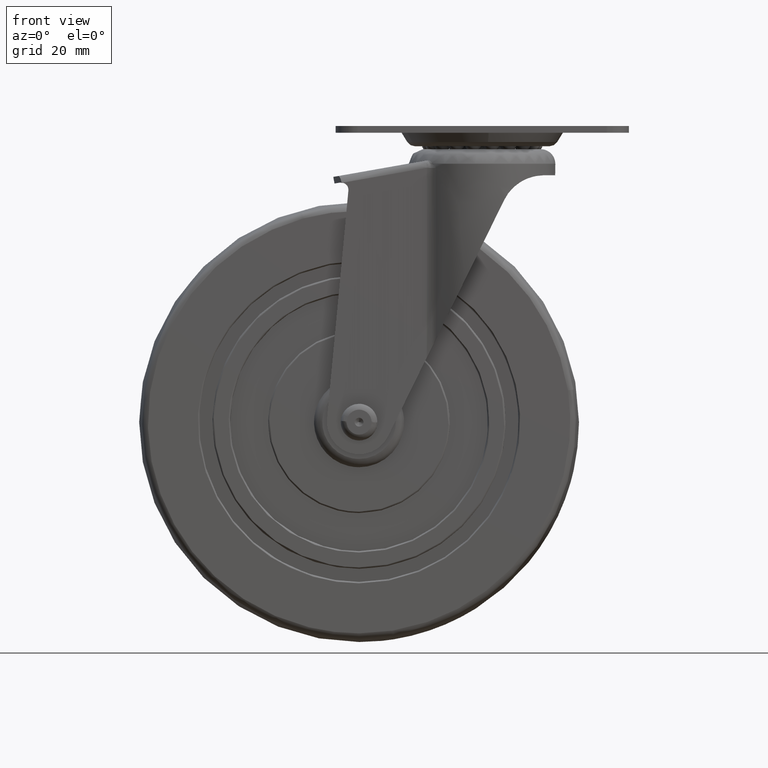
[diagram: clean part render]
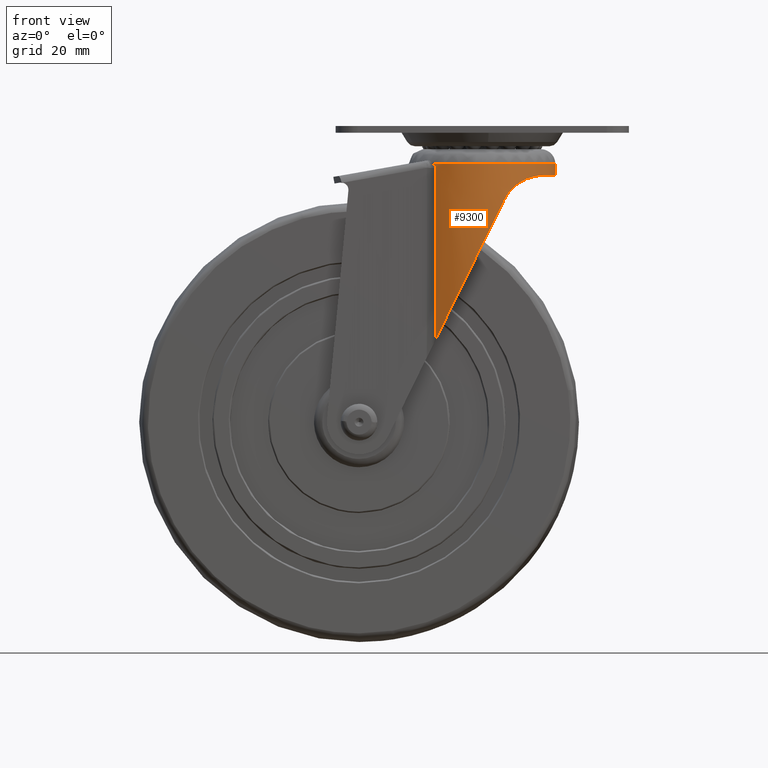
[diagram: same view with one face highlighted and labeled with its STEP entity id]
A machine part, front view. The second image highlights one B-rep face of the part: STEP entity #9300.
In plain terms, the highlighted face is a freeform B-spline surface patch.
Its self-contained STEP definition (entity closure, byte-faithful):
#6570=CARTESIAN_POINT('',(55.379991379837477,21.118139848847349,88.099995000010949));
#6571=VERTEX_POINT('',#6570);
#6585=CARTESIAN_POINT('',(25.074347055175949,18.398974764681100,88.099995000000092));
#6586=VERTEX_POINT('',#6585);
#6587=CARTESIAN_POINT('',(25.074347055175998,18.398974764681061,88.099995000000092));
#6588=CARTESIAN_POINT('',(39.184506428146975,31.379244785025445,88.099995000000106));
#6589=CARTESIAN_POINT('',(55.379991379837477,21.118139848847349,88.099995000010949));
#6597=(BOUNDED_CURVE()B_SPLINE_CURVE(2,(#6587,#6588,#6589),.UNSPECIFIED.,.F.,.U.)B_SPLINE_CURVE_WITH_KNOTS((3,3),(0.0,0.279399680575787),.UNSPECIFIED.)CURVE()GEOMETRIC_REPRESENTATION_ITEM()RATIONAL_B_SPLINE_CURVE((1.0,0.762401471135830,0.923112660691216))REPRESENTATION_ITEM(''));
#6598=EDGE_CURVE('',#6586,#6571,#6597,.T.);
#6665=CARTESIAN_POINT('',(25.022755751862601,-18.351380812873149,88.099995000000092));
#6666=VERTEX_POINT('',#6665);
#6682=CARTESIAN_POINT('',(66.928972506515350,-1.883170138198314,88.099995000010921));
#6683=VERTEX_POINT('',#6682);
#6684=CARTESIAN_POINT('',(66.928972506515350,-1.883170138198314,88.099995000010921));
#6685=CARTESIAN_POINT('',(66.243719502031297,-10.954391565452626,88.099995000000092));
#6686=CARTESIAN_POINT('',(59.888922937896787,-17.463860859557670,88.099995000000092));
#6687=CARTESIAN_POINT('',(42.887840046651576,-34.878742033203501,88.099995000000092));
#6688=CARTESIAN_POINT('',(25.022755751862650,-18.351380812873099,88.099995000000092));
#6696=(BOUNDED_CURVE()B_SPLINE_CURVE(2,(#6684,#6685,#6686,#6687,#6688),.UNSPECIFIED.,.F.,.U.)B_SPLINE_CURVE_WITH_KNOTS((3,2,3),(0.515180778970054,0.666666666666667,1.0),.UNSPECIFIED.)CURVE()GEOMETRIC_REPRESENTATION_ITEM()RATIONAL_B_SPLINE_CURVE((0.859444296361107,0.871178005693406,1.0,0.716536864114606,1.0))REPRESENTATION_ITEM(''));
#6697=EDGE_CURVE('',#6683,#6666,#6696,.T.);
#6737=CARTESIAN_POINT('',(55.379991379837477,21.118139848847349,88.099995000010949));
#6738=CARTESIAN_POINT('',(57.878044136044409,19.535428275590490,88.099995000000092));
#6739=CARTESIAN_POINT('',(59.937884965142374,17.413566061474022,88.099995000000092));
#6740=CARTESIAN_POINT('',(67.776691222540677,9.338734954918538,88.099995000000106));
#6741=CARTESIAN_POINT('',(66.928972506515350,-1.883170138198314,88.099995000010921));
#6749=(BOUNDED_CURVE()B_SPLINE_CURVE(2,(#6737,#6738,#6739,#6740,#6741),.UNSPECIFIED.,.F.,.U.)B_SPLINE_CURVE_WITH_KNOTS((3,2,3),(0.279399680575787,0.333333333333333,0.515180778970055),.UNSPECIFIED.)CURVE()GEOMETRIC_REPRESENTATION_ITEM()RATIONAL_B_SPLINE_CURVE((0.923112660691216,0.954135392978776,1.0,0.845358858421199,0.859444296361107))REPRESENTATION_ITEM(''));
#6750=EDGE_CURVE('',#6571,#6683,#6749,.T.);
#7347=CARTESIAN_POINT('',(26.276602395577498,19.436428884268899,28.530350425748900));
#7348=VERTEX_POINT('',#7347);
#7364=CARTESIAN_POINT('',(26.276602395577552,19.436428884268949,86.726631020429011));
#7365=VERTEX_POINT('',#7364);
#7379=CARTESIAN_POINT('',(26.276602395577498,19.436428884268899,28.530350425748900));
#7380=CARTESIAN_POINT('',(26.276602395577559,19.436428884268910,47.929110623975014));
#7381=CARTESIAN_POINT('',(26.276602395577559,19.436428884268910,67.327870822201007));
#7382=CARTESIAN_POINT('',(26.276602395577552,19.436428884268949,86.726631020429011));
#7383=QUASI_UNIFORM_CURVE('',3,(#7379,#7380,#7381,#7382),.UNSPECIFIED.,.F.,.U.);
#7384=EDGE_CURVE('',#7348,#7365,#7383,.T.);
#7462=CARTESIAN_POINT('',(26.276602395577662,19.436428884268992,86.726631020428997));
#7463=CARTESIAN_POINT('',(26.275293949396509,19.435370765942970,86.763454329114538));
#7464=CARTESIAN_POINT('',(26.272655665737119,19.433237230510311,86.837702956982611));
#7465=CARTESIAN_POINT('',(26.251606721170919,19.416191888497469,86.948083596667331));
#7466=CARTESIAN_POINT('',(26.218195739146939,19.389056789983812,87.057382022851144));
#7467=CARTESIAN_POINT('',(26.171309273694941,19.350816733266040,87.165566470412983));
#7468=CARTESIAN_POINT('',(26.085889557313500,19.280757305022838,87.318559214100290));
#7469=CARTESIAN_POINT('',(25.944244228952520,19.163335080716429,87.500828243864589));
#7470=CARTESIAN_POINT('',(25.760833079945328,19.008156647393250,87.660780158741701));
#7471=CARTESIAN_POINT('',(25.546765446049100,18.823310949533830,87.781768830590195));
#7472=CARTESIAN_POINT('',(25.376030660700970,18.672551408194920,87.866040528778541));
#7473=CARTESIAN_POINT('',(25.232421321539530,18.543260854406839,87.941400023406601));
#7474=CARTESIAN_POINT('',(25.159649831264652,18.477150806835510,87.992914498669123));
#7475=CARTESIAN_POINT('',(25.105118887068450,18.427264000515379,88.041421691400885));
#7476=CARTESIAN_POINT('',(25.083575794432431,18.407458951849090,88.082428356768062));
#7477=CARTESIAN_POINT('',(25.074347055175991,18.398974764681050,88.099994999999993));
#7478=B_SPLINE_CURVE_WITH_KNOTS('',3,(#7462,#7463,#7464,#7465,#7466,#7467,#7468,#7469,#7470,#7471,#7472,#7473,#7474,#7475,#7476,#7477),.UNSPECIFIED.,.F.,.U.,(4,1,1,1,1,1,1,1,1,1,1,1,1,4),(0.0,0.049636943291053,0.100085382397273,0.152461301079727,0.207764118186397,0.266844901971759,0.406644860115500,0.554602683833238,0.653247805519854,0.820950986558730,0.882696968847899,0.932503898434406,0.971085677776204,1.0),.UNSPECIFIED.);
#7479=EDGE_CURVE('',#7365,#6586,#7478,.T.);
#7945=CARTESIAN_POINT('',(26.227839187859949,-19.396879731441249,86.717361208894587));
#7946=VERTEX_POINT('',#7945);
#7960=CARTESIAN_POINT('',(25.022755751862690,-18.351380812873149,88.099994999999993));
#7961=CARTESIAN_POINT('',(25.029617422811071,-18.357725527349331,88.086110110257550));
#7962=CARTESIAN_POINT('',(25.045161914202431,-18.372098900875638,88.054655155524884));
#7963=CARTESIAN_POINT('',(25.083018944030918,-18.406980666848341,88.015309061963748));
#7964=CARTESIAN_POINT('',(25.132832382360672,-18.452658332369321,87.974541138354581));
#7965=CARTESIAN_POINT('',(25.196732563789379,-18.510896127685061,87.933450579540093));
#7966=CARTESIAN_POINT('',(25.330585223699060,-18.631946777485052,87.863447081569007));
#7967=CARTESIAN_POINT('',(25.496038519503799,-18.778857956554820,87.781689947295874));
#7968=CARTESIAN_POINT('',(25.710545662074800,-18.965086504988999,87.659447250816697));
#7969=CARTESIAN_POINT('',(25.894760980628089,-19.121773557097100,87.497570928071497));
#7970=CARTESIAN_POINT('',(26.052060997901378,-19.252850487132431,87.294150985354108));
#7971=CARTESIAN_POINT('',(26.156155765908188,-19.338454900875121,87.093028600906962));
#7972=CARTESIAN_POINT('',(26.216502917933770,-19.387671020432521,86.906847512660391));
#7973=CARTESIAN_POINT('',(26.224124752361231,-19.393862410638938,86.779448179110432));
#7974=CARTESIAN_POINT('',(26.227839187859949,-19.396879731441249,86.717361208894587));
#7975=B_SPLINE_CURVE_WITH_KNOTS('',3,(#7960,#7961,#7962,#7963,#7964,#7965,#7966,#7967,#7968,#7969,#7970,#7971,#7972,#7973,#7974),.UNSPECIFIED.,.F.,.U.,(4,1,1,1,1,1,1,1,1,1,1,1,4),(0.0,0.022338032621168,0.050604781020853,0.085795139517335,0.128421941640627,0.178771296470803,0.345564630990785,0.445072589217223,0.593082655438537,0.733115100632016,0.829452583203906,0.916885182271157,1.0),.UNSPECIFIED.);
#7976=EDGE_CURVE('',#6666,#7946,#7975,.T.);
#8022=CARTESIAN_POINT('',(26.227839187859900,-19.396879731441249,28.431119790046449));
#8023=VERTEX_POINT('',#8022);
#8034=CARTESIAN_POINT('',(26.227839187859949,-19.396879731441249,86.717361208894587));
#8035=CARTESIAN_POINT('',(26.227839187860049,-19.396879731441260,67.288614069278637));
#8036=CARTESIAN_POINT('',(26.227839187860049,-19.396879731441260,47.859866929662303));
#8037=CARTESIAN_POINT('',(26.227839187859900,-19.396879731441249,28.431119790046449));
#8038=QUASI_UNIFORM_CURVE('',3,(#8034,#8035,#8036,#8037),.UNSPECIFIED.,.F.,.U.);
#8039=EDGE_CURVE('',#7946,#8023,#8038,.T.);
#8621=CARTESIAN_POINT('',(49.518290358037802,-23.842720274587801,75.825997682429900));
#8622=VERTEX_POINT('',#8621);
#8628=CARTESIAN_POINT('',(49.518290358037802,-23.842720274587801,75.825997682429900));
#8629=CARTESIAN_POINT('',(36.675717525678728,-27.892350114888675,49.692018277467831));
#8630=CARTESIAN_POINT('',(26.227839187859900,-19.396879731441249,28.431119790046449));
#8638=(BOUNDED_CURVE()B_SPLINE_CURVE(2,(#8628,#8629,#8630),.UNSPECIFIED.,.F.,.U.)CURVE()GEOMETRIC_REPRESENTATION_ITEM()QUASI_UNIFORM_CURVE()RATIONAL_B_SPLINE_CURVE((1.0,0.880406584744681,1.0))REPRESENTATION_ITEM(''));
#8639=EDGE_CURVE('',#8622,#8023,#8638,.T.);
#8684=CARTESIAN_POINT('',(49.518290358037802,23.842720274587549,75.825997682429900));
#8685=VERTEX_POINT('',#8684);
#8686=CARTESIAN_POINT('',(26.276602395577541,19.436428884268899,28.530350425748921));
#8687=CARTESIAN_POINT('',(36.714317184623845,27.880178540491237,49.770566610818044));
#8688=CARTESIAN_POINT('',(49.518290358037802,23.842720274587549,75.825997682429900));
#8696=(BOUNDED_CURVE()B_SPLINE_CURVE(2,(#8686,#8687,#8688),.UNSPECIFIED.,.F.,.U.)CURVE()GEOMETRIC_REPRESENTATION_ITEM()QUASI_UNIFORM_CURVE()RATIONAL_B_SPLINE_CURVE((1.0,0.881001370450515,1.0))REPRESENTATION_ITEM(''));
#8697=EDGE_CURVE('',#7348,#8685,#8696,.T.);
#8761=CARTESIAN_POINT('',(62.967741033245787,-13.614471563844701,84.199996999999996));
#8762=VERTEX_POINT('',#8761);
#8763=CARTESIAN_POINT('',(62.967741033245787,-13.614471563844701,84.199996999999996));
#8764=CARTESIAN_POINT('',(62.833449936217768,-13.821289543254830,84.199924659103715));
#8765=CARTESIAN_POINT('',(62.696229234348500,-14.025915765834130,84.198044563318859));
#8766=CARTESIAN_POINT('',(62.147150194949042,-14.819186137712720,84.182687622250725));
#8767=CARTESIAN_POINT('',(61.713455158185177,-15.391414546377870,84.153923148869410));
#8768=CARTESIAN_POINT('',(61.026018651662767,-16.221570529866280,84.074559380295369));
#8769=CARTESIAN_POINT('',(60.790716915830743,-16.493585322391251,84.042048522327192));
#8770=CARTESIAN_POINT('',(60.428493189780127,-16.894459083511709,83.982677333733108));
#8771=CARTESIAN_POINT('',(60.306206322456831,-17.026891862189071,83.961117438171939));
#8772=CARTESIAN_POINT('',(60.058529963489171,-17.289353373093810,83.914177423237945));
#8773=CARTESIAN_POINT('',(59.933142970179027,-17.419367008410781,83.888790198768461));
#8774=CARTESIAN_POINT('',(59.302682764611802,-18.059159506900990,83.752545136936988));
#8775=CARTESIAN_POINT('',(58.783804431775970,-18.541603379351500,83.613256486077560));
#8776=CARTESIAN_POINT('',(57.722862334406337,-19.449390236437839,83.261370167299503));
#8777=CARTESIAN_POINT('',(57.180772784882677,-19.874729039663571,83.048836685314029));
#8778=CARTESIAN_POINT('',(56.492613855470047,-20.371370887963732,82.727575599752655));
#8779=CARTESIAN_POINT('',(56.354457161515263,-20.468946322511169,82.660533298962577));
#8780=CARTESIAN_POINT('',(56.077205350770917,-20.660602649509048,82.520574695715055));
#8781=CARTESIAN_POINT('',(55.938635612191007,-20.754314833993771,82.447914953424771));
#8782=CARTESIAN_POINT('',(55.525093253970418,-21.028100335753280,82.222675914572321));
#8783=CARTESIAN_POINT('',(55.251548383069263,-21.201337608367439,82.062469517954440));
#8784=CARTESIAN_POINT('',(54.439093562421981,-21.694941082070262,81.550695819180035));
#8785=CARTESIAN_POINT('',(53.908320512852903,-21.989236415130598,81.168061150288423));
#8786=CARTESIAN_POINT('',(53.135832936051777,-22.384744976136670,80.526657620292227));
#8787=CARTESIAN_POINT('',(52.882290843956063,-22.508915548380191,80.301595466476797));
#8788=CARTESIAN_POINT('',(52.508956164928897,-22.684370454447240,79.946218480960042));
#8789=CARTESIAN_POINT('',(52.385675491208602,-22.741054746099490,79.824793573013906));
#8790=CARTESIAN_POINT('',(52.141633738585362,-22.850932110265600,79.575836032828548));
#8791=CARTESIAN_POINT('',(52.021757594832451,-22.903727465152478,79.449205033618298));
#8792=CARTESIAN_POINT('',(51.433335630742768,-23.157611510545721,78.805493447728239));
#8793=CARTESIAN_POINT('',(50.997451780351327,-23.328653986775318,78.256745520271252));
#8794=CARTESIAN_POINT('',(50.399422980590423,-23.547711937684600,77.383342522842725));
#8795=CARTESIAN_POINT('',(50.209398604684708,-23.614444494065420,77.083804519821712));
#8796=CARTESIAN_POINT('',(49.938995280836473,-23.706146885461411,76.621706020807423));
#8797=CARTESIAN_POINT('',(49.807454538448418,-23.749896194482041,76.387456265669456));
#8798=CARTESIAN_POINT('',(49.681554708359862,-23.790661962174049,76.148345051661323));
#8799=CARTESIAN_POINT('',(49.598893749199959,-23.817193276476360,75.987848537856379));
#8800=CARTESIAN_POINT('',(49.558185086932824,-23.830140302613760,75.907022646650233));
#8801=CARTESIAN_POINT('',(49.518290358037802,-23.842720274587801,75.825997682429900));
#8802=B_SPLINE_CURVE_WITH_KNOTS('',3,(#8763,#8764,#8765,#8766,#8767,#8768,#8769,#8770,#8771,#8772,#8773,#8774,#8775,#8776,#8777,#8778,#8779,#8780,#8781,#8782,#8783,#8784,#8785,#8786,#8787,#8788,#8789,#8790,#8791,#8792,#8793,#8794,#8795,#8796,#8797,#8798,#8799,#8800,#8801),.UNSPECIFIED.,.F.,.U.,(4,2,2,2,2,2,2,2,2,2,2,2,2,2,2,2,2,1,2,4),(0.708042423271960,0.718750000000003,0.750000000000003,0.765625000000002,0.773437500000002,0.781250000000002,0.812500000000000,0.843749999999999,0.851562499999999,0.859374999999998,0.874999999999998,0.906249999999998,0.921874999999998,0.929687499999998,0.937499999999998,0.968749999999999,0.984375000000000,0.992187500000000,0.996093750000000,1.0),.UNSPECIFIED.);
#8803=EDGE_CURVE('',#8762,#8622,#8802,.T.);
#8869=CARTESIAN_POINT('',(62.967741033245787,13.614471563844701,84.199996999999996));
#8870=VERTEX_POINT('',#8869);
#8871=CARTESIAN_POINT('',(49.518290358037802,23.842720274587549,75.825997682429900));
#8872=CARTESIAN_POINT('',(49.675919504685901,23.793015207254520,76.146137608018506));
#8873=CARTESIAN_POINT('',(49.844971308978643,23.738002087244709,76.460681554382063));
#8874=CARTESIAN_POINT('',(50.115735917403370,23.646223698637598,76.923909329259288));
#8875=CARTESIAN_POINT('',(50.208857501715343,23.614084763829890,77.076885874669301));
#8876=CARTESIAN_POINT('',(50.400869874570809,23.546458772054478,77.379924372044783));
#8877=CARTESIAN_POINT('',(50.499264789802822,23.511144547910231,77.529194028041005));
#8878=CARTESIAN_POINT('',(51.001589382697126,23.327119661416450,78.262644957973421));
#8879=CARTESIAN_POINT('',(51.437672106544227,23.155733752011280,78.810208994833147));
#8880=CARTESIAN_POINT('',(52.136854444411490,22.854070482476320,79.575130676707161));
#8881=CARTESIAN_POINT('',(52.377448256840196,22.746062867224449,79.820671534748115));
#8882=CARTESIAN_POINT('',(52.749014734211457,22.571604161579661,80.174903207119527));
#8883=CARTESIAN_POINT('',(52.874650378728170,22.511375014568578,80.290632433155125));
#8884=CARTESIAN_POINT('',(53.129386652095512,22.386531030347999,80.517390664221395));
#8885=CARTESIAN_POINT('',(53.258605551623148,22.321855625003710,80.628517608434834));
#8886=CARTESIAN_POINT('',(53.911878517448727,21.987534899622460,81.171325395678593));
#8887=CARTESIAN_POINT('',(54.447044828952038,21.690409531629570,81.556217452487928));
#8888=CARTESIAN_POINT('',(55.531763443197711,21.030790222020869,82.238458080395361));
#8889=CARTESIAN_POINT('',(56.081359999808377,20.668305035327819,82.535744555295580));
#8890=CARTESIAN_POINT('',(56.771510994157310,20.170057997253519,82.857735557009164));
#8891=CARTESIAN_POINT('',(56.909868440405397,20.068015408152618,82.919712815623214));
#8892=CARTESIAN_POINT('',(57.184788365218587,19.860805958221079,83.037992979966489));
#8893=CARTESIAN_POINT('',(57.321568463329129,19.755487457797280,83.094403778201368));
#8894=CARTESIAN_POINT('',(57.729730527320903,19.434382201600741,83.255870688436090));
#8895=CARTESIAN_POINT('',(57.998932881220611,19.213446903364851,83.353169246541484));
#8896=CARTESIAN_POINT('',(58.796778484767962,18.529935726722009,83.617075377345913));
#8897=CARTESIAN_POINT('',(59.315656289354450,18.046676413064642,83.755768956728787));
#8898=CARTESIAN_POINT('',(59.944710557559389,17.407447587634220,83.891178194408781));
#8899=CARTESIAN_POINT('',(60.069544669093659,17.277842383731809,83.916355950300883));
#8900=CARTESIAN_POINT('',(60.317178110590362,17.015089188161749,83.963096512013891));
#8901=CARTESIAN_POINT('',(60.439887842023460,16.882026154638410,83.984637174954671));
#8902=CARTESIAN_POINT('',(60.802709434574261,16.479931736271130,84.043814590159243));
#8903=CARTESIAN_POINT('',(61.038248907712791,16.207226107804111,84.076157993097198));
#8904=CARTESIAN_POINT('',(61.725995694183062,15.375385814822510,84.154980802312693));
#8905=CARTESIAN_POINT('',(62.159362237561893,14.802551940524040,84.183338430163815));
#8906=CARTESIAN_POINT('',(62.703799774151868,14.014622937824649,84.198146592366825));
#8907=CARTESIAN_POINT('',(62.837174765063907,13.815552777899040,84.199926274388204));
#8908=CARTESIAN_POINT('',(62.967741033245787,13.614471563844701,84.199996999999996));
#8909=B_SPLINE_CURVE_WITH_KNOTS('',3,(#8871,#8872,#8873,#8874,#8875,#8876,#8877,#8878,#8879,#8880,#8881,#8882,#8883,#8884,#8885,#8886,#8887,#8888,#8889,#8890,#8891,#8892,#8893,#8894,#8895,#8896,#8897,#8898,#8899,#8900,#8901,#8902,#8903,#8904,#8905,#8906,#8907,#8908),.UNSPECIFIED.,.F.,.U.,(4,2,2,2,2,2,2,2,2,2,2,2,2,2,2,2,2,2,4),(0.0,0.015625000000001,0.023437500000002,0.031250000000002,0.062500000000005,0.078125000000006,0.085937500000007,0.093750000000007,0.125000000000007,0.156250000000008,0.164062500000008,0.171875000000007,0.187500000000007,0.218750000000007,0.226562500000007,0.234375000000006,0.250000000000006,0.281250000000006,0.291672468982274),.UNSPECIFIED.);
#8910=EDGE_CURVE('',#8685,#8870,#8909,.T.);
#8975=CARTESIAN_POINT('',(62.967741033245872,13.614471563844759,84.199996999999996));
#8976=CARTESIAN_POINT('',(71.807693590311757,6.938894E-015,84.199997000000010));
#8977=CARTESIAN_POINT('',(62.967741033245872,-13.614471563844750,84.199996999999996));
#8985=(BOUNDED_CURVE()B_SPLINE_CURVE(2,(#8975,#8976,#8977),.UNSPECIFIED.,.F.,.U.)CURVE()GEOMETRIC_REPRESENTATION_ITEM()QUASI_UNIFORM_CURVE()RATIONAL_B_SPLINE_CURVE((1.0,0.838709641329835,1.0))REPRESENTATION_ITEM(''));
#8986=EDGE_CURVE('',#8870,#8762,#8985,.T.);
#9264=CARTESIAN_POINT('',(24.486090646423690,17.839926545664689,26.939397909797339));
#9265=CARTESIAN_POINT('',(24.486090646423690,17.839926545664689,89.629009927266281));
#9266=CARTESIAN_POINT('',(42.326017192088365,35.353835899241005,26.939397909797336));
#9267=CARTESIAN_POINT('',(42.326017192088365,35.353835899241005,89.629009927266281));
#9268=CARTESIAN_POINT('',(59.839926545664703,17.513909353576320,26.939397909797339));
#9269=CARTESIAN_POINT('',(59.839926545664703,17.513909353576320,89.629009927266281));
#9270=CARTESIAN_POINT('',(77.353835899241005,-0.326017192088370,26.939397909797336));
#9271=CARTESIAN_POINT('',(77.353835899241005,-0.326017192088370,89.629009927266281));
#9272=CARTESIAN_POINT('',(59.513909353576317,-17.839926545664689,26.939397909797339));
#9273=CARTESIAN_POINT('',(59.513909353576317,-17.839926545664689,89.629009927266281));
#9274=CARTESIAN_POINT('',(41.673982807911621,-35.353835899241005,26.939397909797336));
#9275=CARTESIAN_POINT('',(41.673982807911621,-35.353835899241005,89.629009927266281));
#9276=CARTESIAN_POINT('',(24.160073454335311,-17.513909353576320,26.939397909797339));
#9277=CARTESIAN_POINT('',(24.160073454335311,-17.513909353576320,89.629009927266281));
#9285=(BOUNDED_SURFACE()B_SPLINE_SURFACE(1,2,((#9264,#9266,#9268,#9270,#9272,#9274,#9276),(#9265,#9267,#9269,#9271,#9273,#9275,#9277)),.UNSPECIFIED.,.F.,.F.,.U.)B_SPLINE_SURFACE_WITH_KNOTS((2,2),(3,2,2,3),(0.0,62.689612017468953),(0.0,41.421356237309489,82.842712474618978,124.264068711928500),.UNSPECIFIED.)GEOMETRIC_REPRESENTATION_ITEM()RATIONAL_B_SPLINE_SURFACE(((1.0,0.707106781186548,1.0,0.707106781186548,1.0,0.707106781186548,1.0),(1.0,0.707106781186548,1.0,0.707106781186548,1.0,0.707106781186548,1.0)))REPRESENTATION_ITEM('')SURFACE());
#9286=ORIENTED_EDGE('',*,*,#8697,.F.);
#9287=ORIENTED_EDGE('',*,*,#7384,.T.);
#9288=ORIENTED_EDGE('',*,*,#7479,.T.);
#9289=ORIENTED_EDGE('',*,*,#6598,.T.);
#9290=ORIENTED_EDGE('',*,*,#6750,.T.);
#9291=ORIENTED_EDGE('',*,*,#6697,.T.);
#9292=ORIENTED_EDGE('',*,*,#7976,.T.);
#9293=ORIENTED_EDGE('',*,*,#8039,.T.);
#9294=ORIENTED_EDGE('',*,*,#8639,.F.);
#9295=ORIENTED_EDGE('',*,*,#8803,.F.);
#9296=ORIENTED_EDGE('',*,*,#8986,.F.);
#9297=ORIENTED_EDGE('',*,*,#8910,.F.);
#9298=EDGE_LOOP('',(#9286,#9287,#9288,#9289,#9290,#9291,#9292,#9293,#9294,#9295,#9296,#9297));
#9299=FACE_OUTER_BOUND('',#9298,.T.);
#9300=ADVANCED_FACE('',(#9299),#9285,.T.);